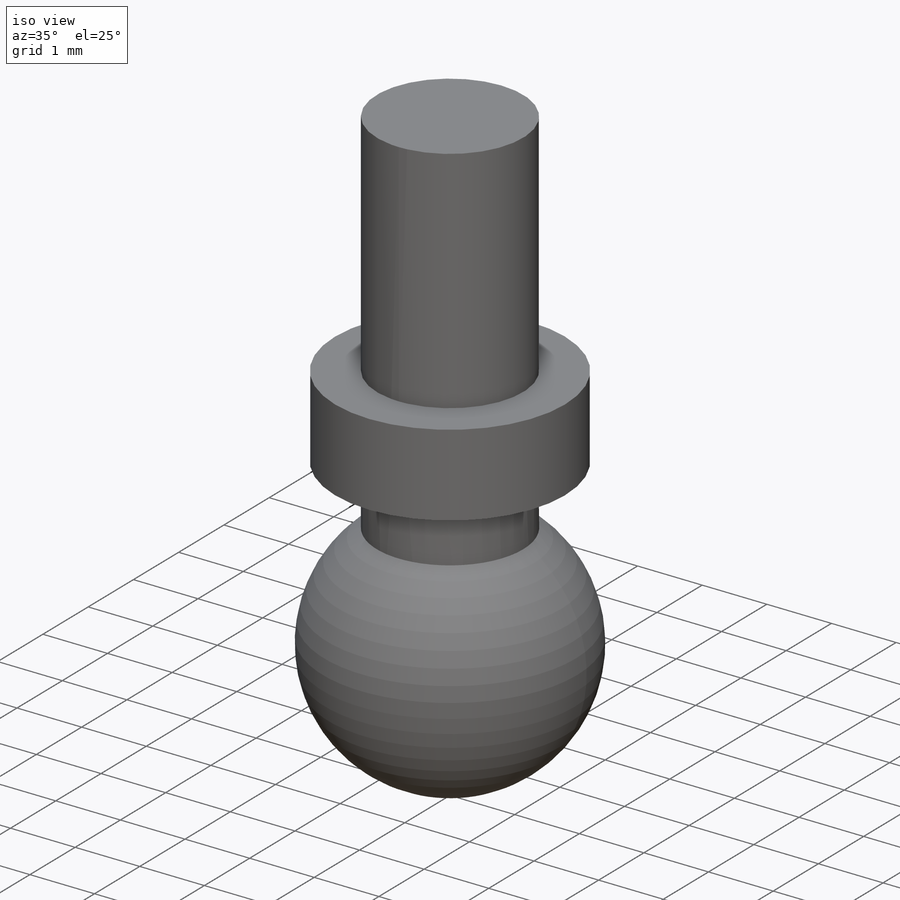
[diagram: iso view]
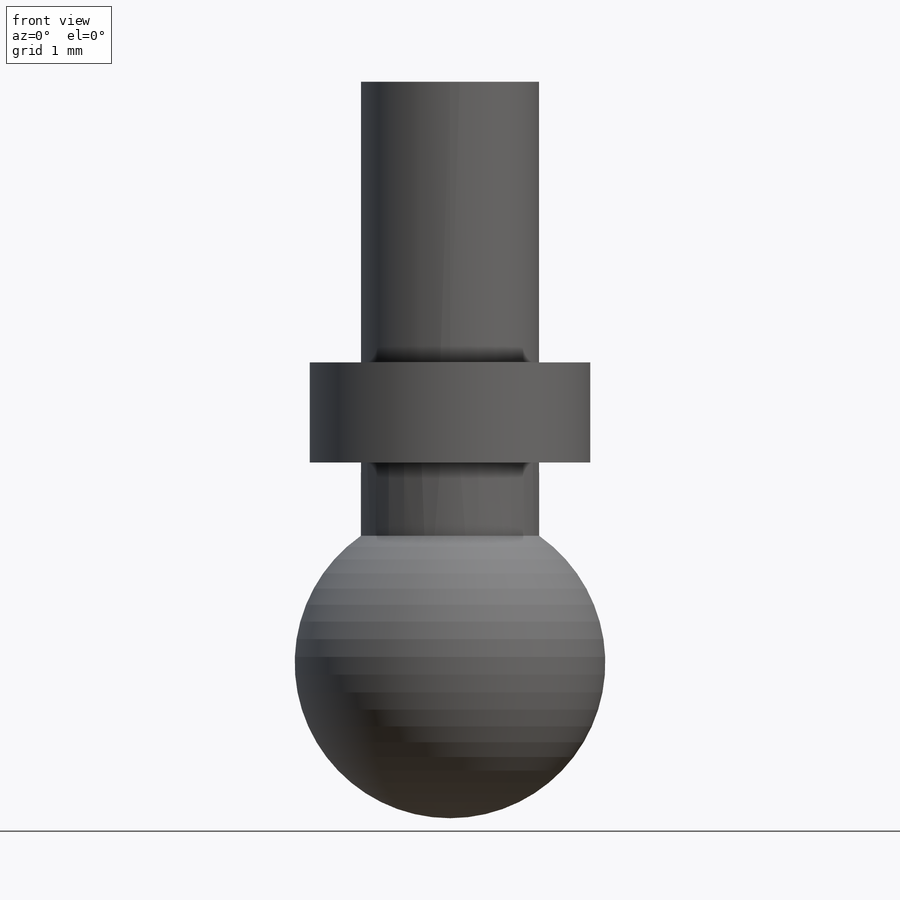
[diagram: front view]
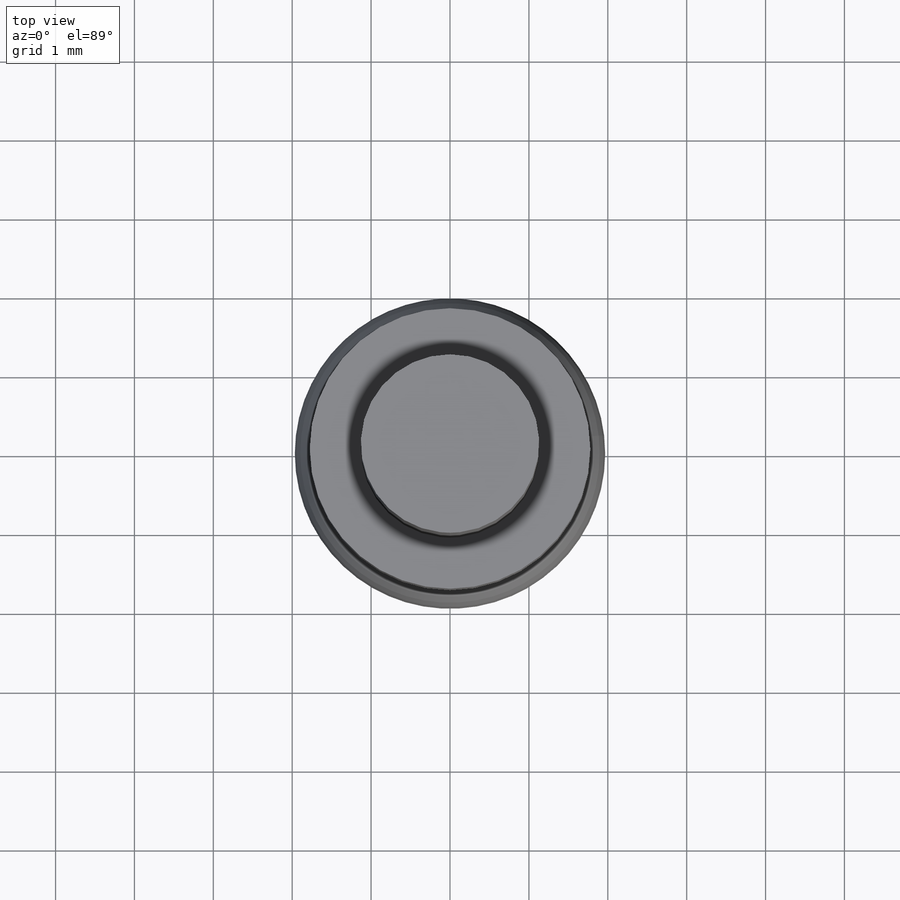
[diagram: top view]
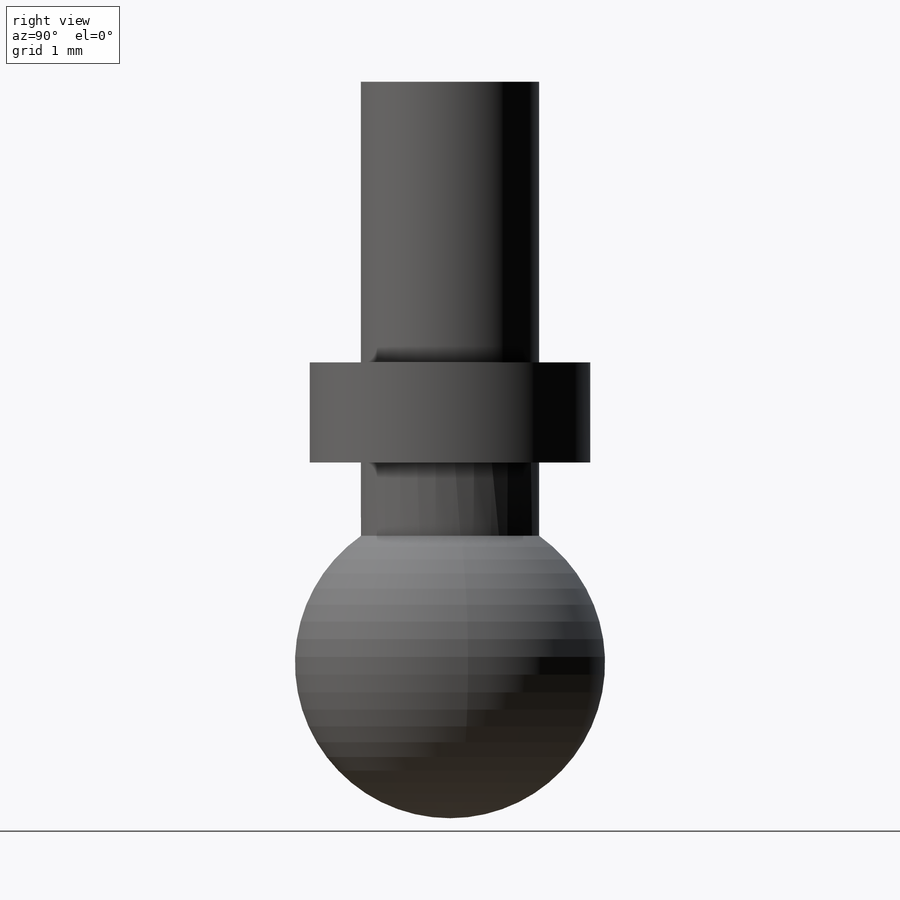
[diagram: right view]
SOLIDWORKS PART (.sldprt)
format: sldprt  version: not decoded by parser v0  size: 184,320 bytes
history: native  units: mm
features: sketch x3, plane x2, extrude x2, material x1, revolve x1 (+16 scaffold rows collapsed)
feature tree (25):
  scaffold x16  (default folders/planes/origin — collapsed)
  material  "Material <not specified>"
  sketch  "Sketch3"  dims[D1=2.032mm]
  revolve  "Revolve1"  Angle=360deg
  plane  "Plane1"
  sketch  "Sketch4"  dims[D1=~1.26365mm]
  extrude  "Extrude1"  Depth=7.366mm
  plane  "Plane2"  Offset=4.826mm
  sketch  "Sketch5"  dims[D1=~1.821248mm]
  extrude  "Extrude2"  Depth=1.27mm
decode coverage: 6 of 6 modeling features carry decoded parameters
note: ~ marks probable driven/reference dimensions
note: suppression state not decoded; provenance and decode notes live in map.json
